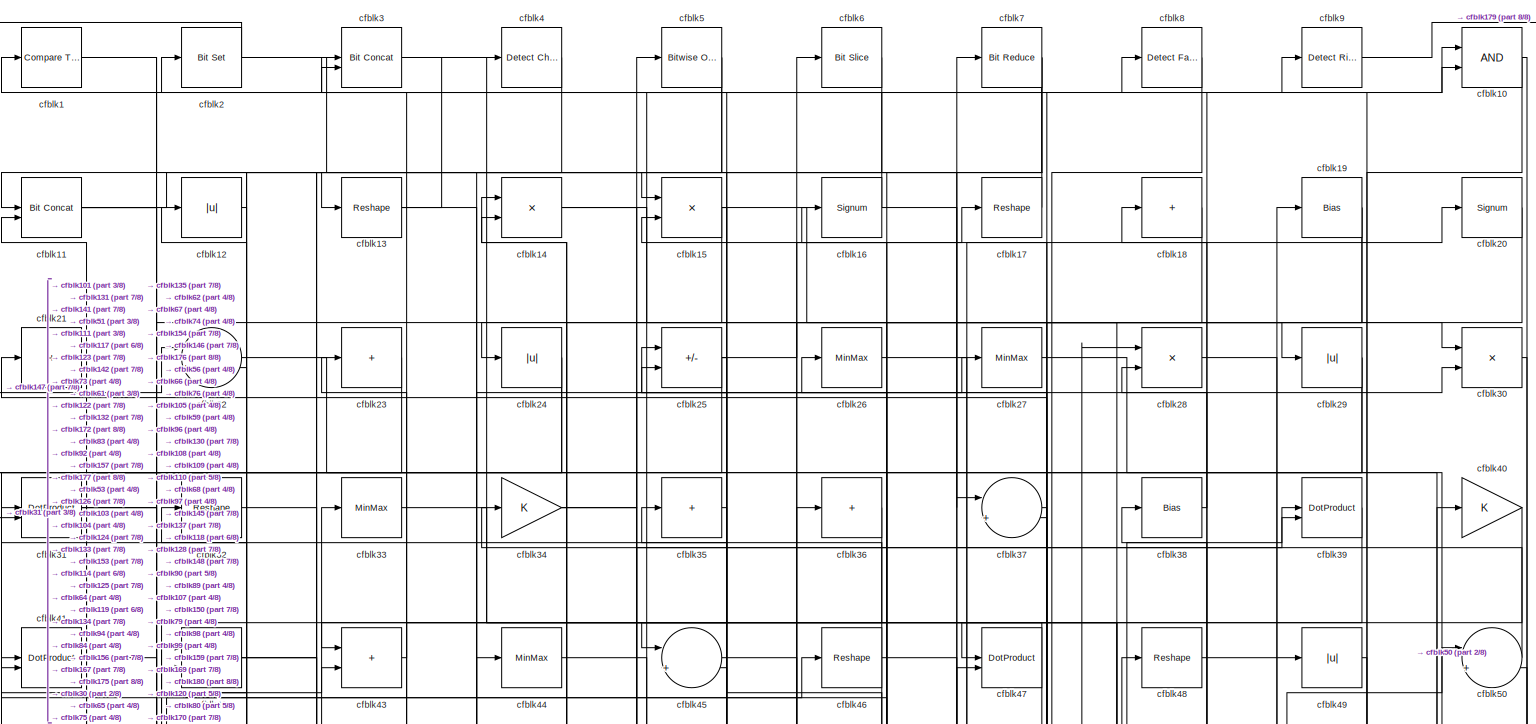
[diagram: root canvas - part 1/8, full width, top band]
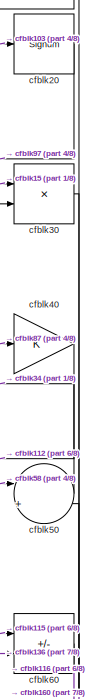
[diagram: root canvas - part 2/8, top right region]
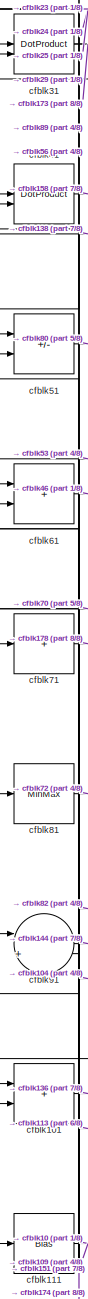
[diagram: root canvas - part 3/8, middle left region]
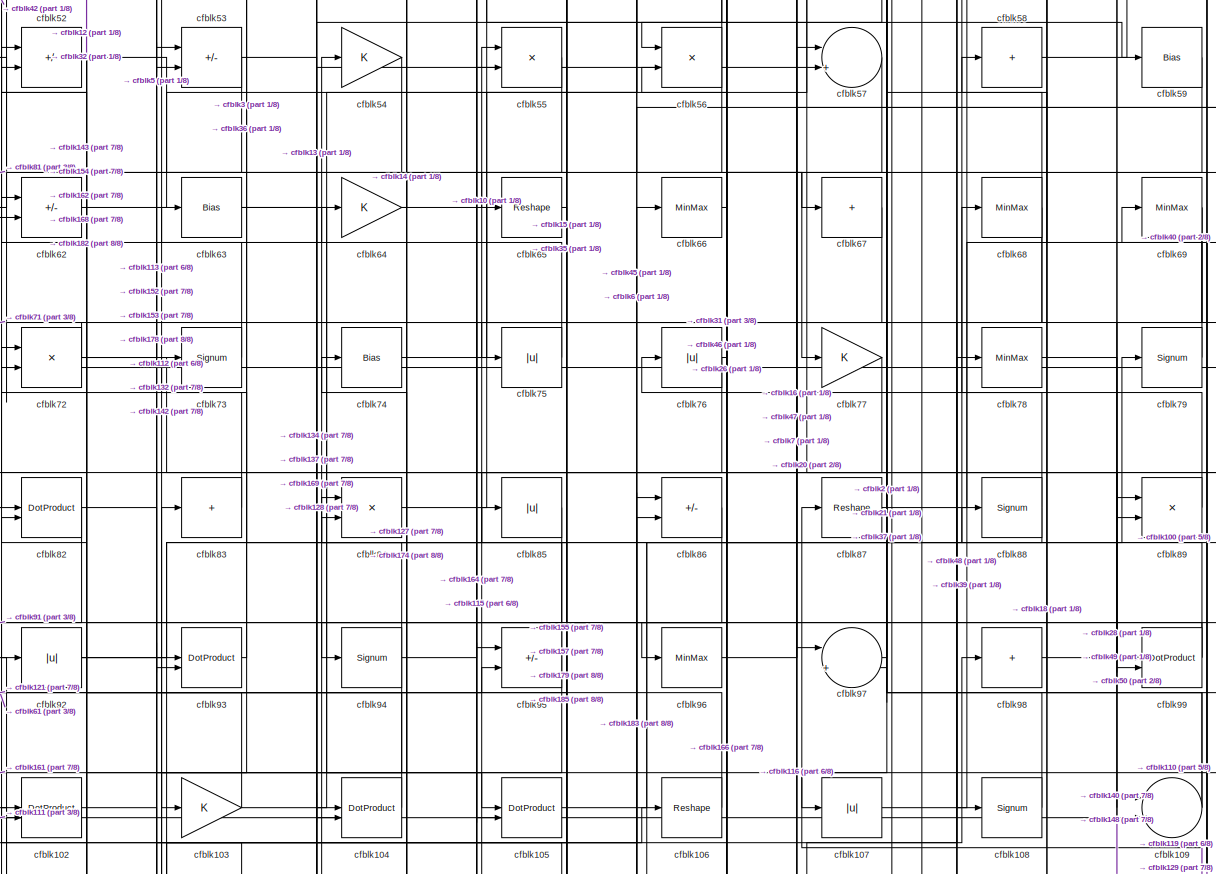
[diagram: root canvas - part 4/8, full width, middle band]
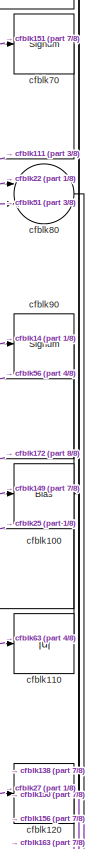
[diagram: root canvas - part 5/8, middle right region]
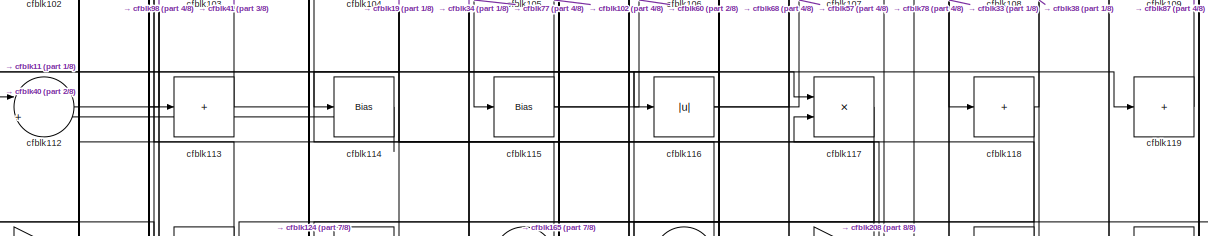
[diagram: root canvas - part 6/8, full width, middle band]
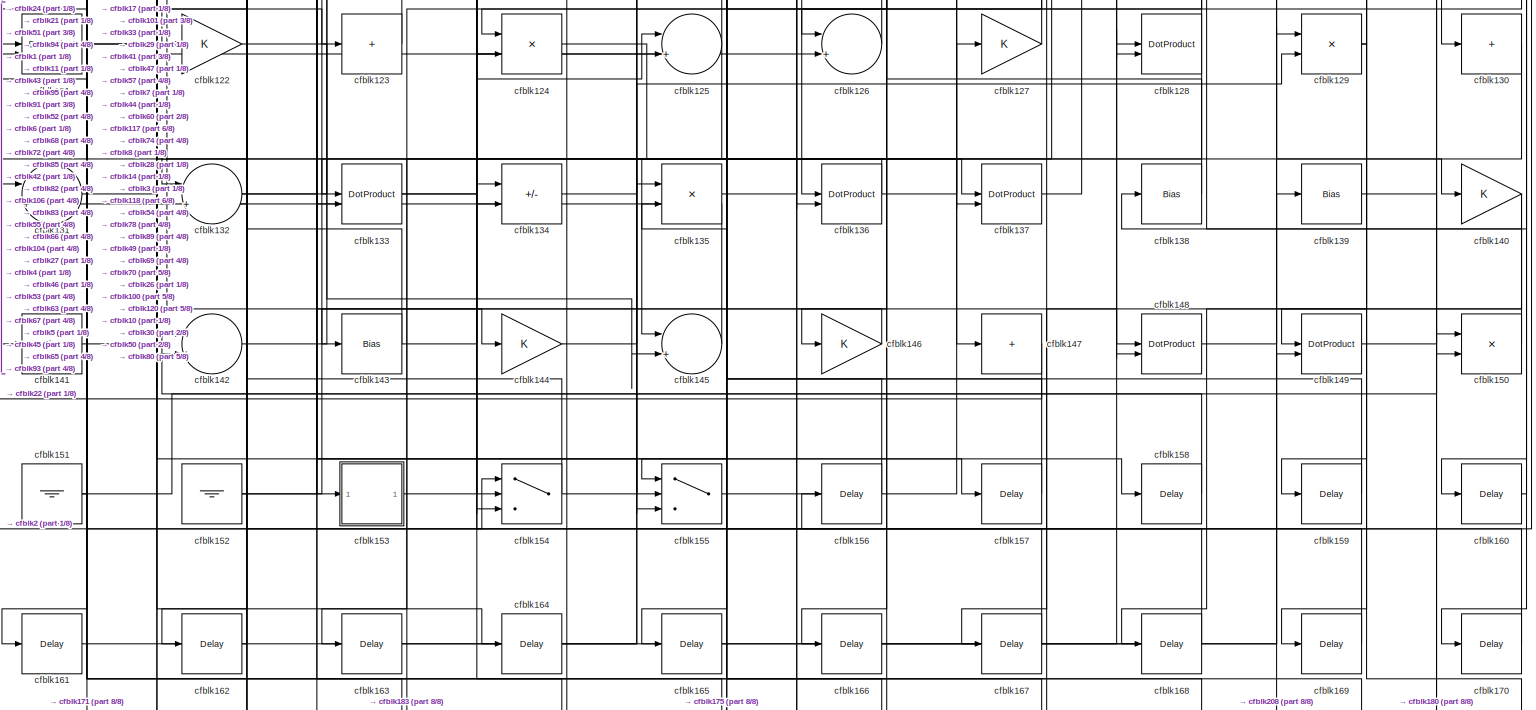
[diagram: root canvas - part 7/8, full width, bottom band]
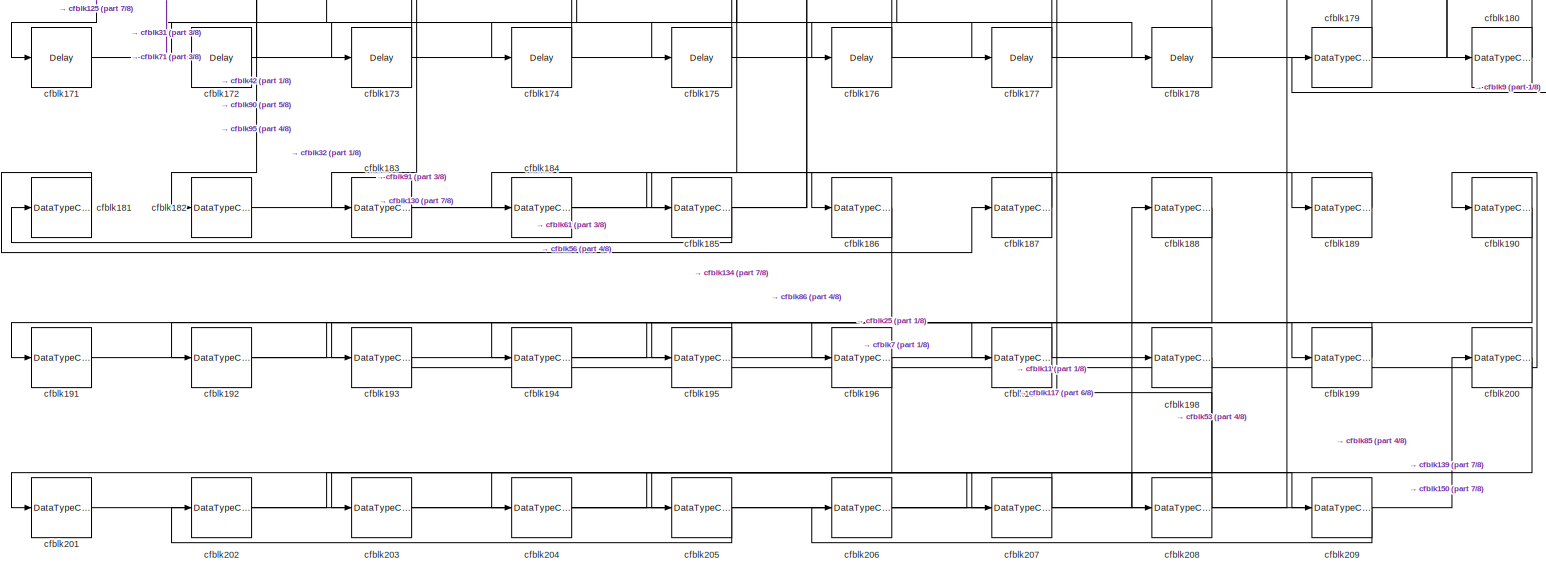
[diagram: root canvas - part 8/8, full width, bottom band]
MODEL slx_411ce4a342ea
KIND model
CONFIG AbsTol = auto
CONFIG EnableMultiTasking = off
CONFIG FixedStep = auto
CONFIG MaxStep = auto
CONFIG MinStep = auto
CONFIG RelTol = 1e-3
CONFIG SampleTimeConstraint = Unconstrained
CONFIG SolverName = VariableStepAuto
CONFIG StartTime = 0.0
CONFIG StopTime = 10.0
BLOCK [Reference] cfblk1  REF=hdlsllib/Logic and Bit
Operations/Compare
To Zero
  SourceBlock = hdlsllib/Logic and Bit\nOperations/Compare\nTo Zero
  SourceType = Compare To Zero
BLOCK [Logic] cfblk10
  AllPortsSameDT = off
  OutDataTypeStr = boolean
BLOCK [Bias] cfblk100
  Bias = 0.0
  SaturateOnIntegerOverflow = off
BLOCK [Sum] cfblk101
  IconShape = rectangular
BLOCK [DotProduct] cfblk102
  OutDataTypeStr = Inherit: Inherit via internal rule
BLOCK [Gain] cfblk103
BLOCK [DotProduct] cfblk104
  OutDataTypeStr = Inherit: Inherit via internal rule
BLOCK [DotProduct] cfblk105
  OutDataTypeStr = Inherit: Inherit via internal rule
BLOCK [Reshape] cfblk106
BLOCK [Abs] cfblk107
  SaturateOnIntegerOverflow = off
BLOCK [Signum] cfblk108
BLOCK [Sum] cfblk109
  Inputs = |++
BLOCK [Reference] cfblk11  REF=hdlsllib/Logic and Bit
Operations/Bit Concat
  SourceBlock = hdlsllib/Logic and Bit\nOperations/Bit Concat
  SourceType = Bit Concat
BLOCK [Abs] cfblk110
  SaturateOnIntegerOverflow = off
BLOCK [Bias] cfblk111
  Bias = 0.0
  SaturateOnIntegerOverflow = off
BLOCK [Sum] cfblk112
  Inputs = |++
BLOCK [Sum] cfblk113
  IconShape = rectangular
  Inputs = +
BLOCK [Bias] cfblk114
  Bias = 0.0
  SaturateOnIntegerOverflow = off
BLOCK [Bias] cfblk115
  Bias = 0.0
  SaturateOnIntegerOverflow = off
BLOCK [Abs] cfblk116
  SaturateOnIntegerOverflow = off
BLOCK [Product] cfblk117
  Inputs = */
  RndMeth = Zero
  SaturateOnIntegerOverflow = on
BLOCK [Sum] cfblk118
  IconShape = rectangular
  Inputs = +
BLOCK [Sum] cfblk119
  IconShape = rectangular
  Inputs = +
BLOCK [Abs] cfblk12
  SaturateOnIntegerOverflow = off
BLOCK [MinMax] cfblk120
BLOCK [DotProduct] cfblk121
  OutDataTypeStr = Inherit: Inherit via internal rule
BLOCK [Gain] cfblk122
BLOCK [Sum] cfblk123
  IconShape = rectangular
  Inputs = +
BLOCK [Product] cfblk124
  Inputs = */
  RndMeth = Zero
  SaturateOnIntegerOverflow = on
BLOCK [Sum] cfblk125
  Inputs = |++
BLOCK [Sum] cfblk126
  Inputs = |++
BLOCK [Gain] cfblk127
BLOCK [DotProduct] cfblk128
  OutDataTypeStr = Inherit: Inherit via internal rule
BLOCK [Product] cfblk129
  Inputs = */
  RndMeth = Zero
  SaturateOnIntegerOverflow = on
BLOCK [Reshape] cfblk13
BLOCK [Sum] cfblk130
  IconShape = rectangular
  Inputs = +
BLOCK [Sum] cfblk131
  Inputs = |++
BLOCK [Sum] cfblk132
  Inputs = |++
BLOCK [DotProduct] cfblk133
  OutDataTypeStr = Inherit: Inherit via internal rule
BLOCK [Sum] cfblk134
  IconShape = rectangular
  Inputs = +-
BLOCK [Product] cfblk135
  Inputs = */
  RndMeth = Zero
  SaturateOnIntegerOverflow = on
BLOCK [DotProduct] cfblk136
  OutDataTypeStr = Inherit: Inherit via internal rule
BLOCK [DotProduct] cfblk137
  OutDataTypeStr = Inherit: Inherit via internal rule
BLOCK [Bias] cfblk138
  Bias = 0.0
  SaturateOnIntegerOverflow = off
BLOCK [Bias] cfblk139
  Bias = 0.0
  SaturateOnIntegerOverflow = off
BLOCK [Product] cfblk14
  Inputs = */
  RndMeth = Zero
  SaturateOnIntegerOverflow = on
BLOCK [Gain] cfblk140
BLOCK [Bias] cfblk141
  Bias = 0.0
  SaturateOnIntegerOverflow = off
BLOCK [Sum] cfblk142
  Inputs = |++
BLOCK [Bias] cfblk143
  Bias = 0.0
  SaturateOnIntegerOverflow = off
BLOCK [Gain] cfblk144
BLOCK [Sum] cfblk145
  Inputs = |++
BLOCK [Gain] cfblk146
BLOCK [Sum] cfblk147
  IconShape = rectangular
  Inputs = +
BLOCK [DotProduct] cfblk148
  OutDataTypeStr = Inherit: Inherit via internal rule
BLOCK [DotProduct] cfblk149
  OutDataTypeStr = Inherit: Inherit via internal rule
BLOCK [Product] cfblk15
  Inputs = */
  RndMeth = Zero
  SaturateOnIntegerOverflow = on
BLOCK [Product] cfblk150
  Inputs = */
  RndMeth = Zero
  SaturateOnIntegerOverflow = on
BLOCK [Ground] cfblk151
BLOCK [Ground] cfblk152
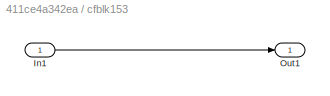
BLOCK [SubSystem] cfblk153
  LibrarySourceBlock = hdlsllib/Ports &\nSubsystems/Subsystem
BLOCK [Inport] cfblk153/In1
BLOCK [Outport] cfblk153/Out1
BLOCK [Switch] cfblk154
  InputSameDT = off
  SaturateOnIntegerOverflow = off
BLOCK [Switch] cfblk155
  InputSameDT = off
  SaturateOnIntegerOverflow = off
BLOCK [Delay] cfblk156
  InputPortMap = u0
  SampleTime = 1
BLOCK [Delay] cfblk157
  InputPortMap = u0
  SampleTime = 1
BLOCK [Delay] cfblk158
  InputPortMap = u0
  SampleTime = 1
BLOCK [Delay] cfblk159
  InputPortMap = u0
  SampleTime = 1
BLOCK [Signum] cfblk16
BLOCK [Delay] cfblk160
  InputPortMap = u0
  SampleTime = 1
BLOCK [Delay] cfblk161
  InputPortMap = u0
  SampleTime = 1
BLOCK [Delay] cfblk162
  InputPortMap = u0
  SampleTime = 1
BLOCK [Delay] cfblk163
  InputPortMap = u0
  SampleTime = 1
BLOCK [Delay] cfblk164
  InputPortMap = u0
  SampleTime = 1
BLOCK [Delay] cfblk165
  InputPortMap = u0
  SampleTime = 1
BLOCK [Delay] cfblk166
  InputPortMap = u0
  SampleTime = 1
BLOCK [Delay] cfblk167
  InputPortMap = u0
  SampleTime = 1
BLOCK [Delay] cfblk168
  InputPortMap = u0
  SampleTime = 1
BLOCK [Delay] cfblk169
  InputPortMap = u0
  SampleTime = 1
BLOCK [Reshape] cfblk17
BLOCK [Delay] cfblk170
  InputPortMap = u0
  SampleTime = 1
BLOCK [Delay] cfblk171
  InputPortMap = u0
  SampleTime = 1
BLOCK [Delay] cfblk172
  InputPortMap = u0
  SampleTime = 1
BLOCK [Delay] cfblk173
  InputPortMap = u0
  SampleTime = 1
BLOCK [Delay] cfblk174
  InputPortMap = u0
  SampleTime = 1
BLOCK [Delay] cfblk175
  InputPortMap = u0
  SampleTime = 1
BLOCK [Delay] cfblk176
  InputPortMap = u0
  SampleTime = 1
BLOCK [Delay] cfblk177
  InputPortMap = u0
  SampleTime = 1
BLOCK [Delay] cfblk178
  InputPortMap = u0
  SampleTime = 1
BLOCK [DataTypeConversion] cfblk179
  OutDataTypeStr = uint8
  RndMeth = Floor
  SaturateOnIntegerOverflow = off
BLOCK [Sum] cfblk18
  IconShape = rectangular
  Inputs = +
BLOCK [DataTypeConversion] cfblk180
  OutDataTypeStr = uint8
  RndMeth = Floor
  SaturateOnIntegerOverflow = off
BLOCK [DataTypeConversion] cfblk181
  RndMeth = Floor
  SaturateOnIntegerOverflow = off
BLOCK [DataTypeConversion] cfblk182
  OutDataTypeStr = uint8
  RndMeth = Floor
  SaturateOnIntegerOverflow = off
BLOCK [DataTypeConversion] cfblk183
  OutDataTypeStr = uint8
  RndMeth = Floor
  SaturateOnIntegerOverflow = off
BLOCK [DataTypeConversion] cfblk184
  RndMeth = Floor
  SaturateOnIntegerOverflow = off
BLOCK [DataTypeConversion] cfblk185
  OutDataTypeStr = uint8
  RndMeth = Floor
  SaturateOnIntegerOverflow = off
BLOCK [DataTypeConversion] cfblk186
  RndMeth = Floor
  SaturateOnIntegerOverflow = off
BLOCK [DataTypeConversion] cfblk187
  OutDataTypeStr = uint8
  RndMeth = Floor
  SaturateOnIntegerOverflow = off
BLOCK [DataTypeConversion] cfblk188
  RndMeth = Floor
  SaturateOnIntegerOverflow = off
BLOCK [DataTypeConversion] cfblk189
  OutDataTypeStr = uint8
  RndMeth = Floor
  SaturateOnIntegerOverflow = off
BLOCK [Bias] cfblk19
  Bias = 0.0
  SaturateOnIntegerOverflow = off
BLOCK [DataTypeConversion] cfblk190
  RndMeth = Floor
  SaturateOnIntegerOverflow = off
BLOCK [DataTypeConversion] cfblk191
  OutDataTypeStr = uint8
  RndMeth = Floor
  SaturateOnIntegerOverflow = off
BLOCK [DataTypeConversion] cfblk192
  RndMeth = Floor
  SaturateOnIntegerOverflow = off
BLOCK [DataTypeConversion] cfblk193
  OutDataTypeStr = uint8
  RndMeth = Floor
  SaturateOnIntegerOverflow = off
BLOCK [DataTypeConversion] cfblk194
  RndMeth = Floor
  SaturateOnIntegerOverflow = off
BLOCK [DataTypeConversion] cfblk195
  OutDataTypeStr = uint8
  RndMeth = Floor
  SaturateOnIntegerOverflow = off
BLOCK [DataTypeConversion] cfblk196
  RndMeth = Floor
  SaturateOnIntegerOverflow = off
BLOCK [DataTypeConversion] cfblk197
  OutDataTypeStr = uint8
  RndMeth = Floor
  SaturateOnIntegerOverflow = off
BLOCK [DataTypeConversion] cfblk198
  RndMeth = Floor
  SaturateOnIntegerOverflow = off
BLOCK [DataTypeConversion] cfblk199
  OutDataTypeStr = uint8
  RndMeth = Floor
  SaturateOnIntegerOverflow = off
BLOCK [Reference] cfblk2  REF=simulink/Logic and Bit
Operations/Bit Set
  LibrarySourceBlock = hdlsllib/Logic and Bit\nOperations/Bit Set
  SourceBlock = simulink/Logic and Bit\nOperations/Bit Set
  SourceType = Bit Set
BLOCK [Signum] cfblk20
BLOCK [DataTypeConversion] cfblk200
  RndMeth = Floor
  SaturateOnIntegerOverflow = off
BLOCK [DataTypeConversion] cfblk201
  OutDataTypeStr = uint8
  RndMeth = Floor
  SaturateOnIntegerOverflow = off
BLOCK [DataTypeConversion] cfblk202
  RndMeth = Floor
  SaturateOnIntegerOverflow = off
BLOCK [DataTypeConversion] cfblk203
  OutDataTypeStr = uint8
  RndMeth = Floor
  SaturateOnIntegerOverflow = off
BLOCK [DataTypeConversion] cfblk204
  RndMeth = Floor
  SaturateOnIntegerOverflow = off
BLOCK [DataTypeConversion] cfblk205
  OutDataTypeStr = uint8
  RndMeth = Floor
  SaturateOnIntegerOverflow = off
BLOCK [DataTypeConversion] cfblk206
  RndMeth = Floor
  SaturateOnIntegerOverflow = off
BLOCK [DataTypeConversion] cfblk207
  OutDataTypeStr = uint8
  RndMeth = Floor
  SaturateOnIntegerOverflow = off
BLOCK [DataTypeConversion] cfblk208
  RndMeth = Floor
  SaturateOnIntegerOverflow = off
BLOCK [DataTypeConversion] cfblk209
  OutDataTypeStr = uint8
  RndMeth = Floor
  SaturateOnIntegerOverflow = off
BLOCK [Sum] cfblk21
  IconShape = rectangular
  Inputs = +
BLOCK [Sum] cfblk22
  Inputs = |++
BLOCK [Sum] cfblk23
  IconShape = rectangular
  Inputs = +
BLOCK [Abs] cfblk24
  SaturateOnIntegerOverflow = off
BLOCK [Sum] cfblk25
  IconShape = rectangular
  Inputs = +-
BLOCK [MinMax] cfblk26
BLOCK [MinMax] cfblk27
BLOCK [Product] cfblk28
  Inputs = */
  RndMeth = Zero
  SaturateOnIntegerOverflow = on
BLOCK [Abs] cfblk29
  SaturateOnIntegerOverflow = off
BLOCK [Reference] cfblk3  REF=hdlsllib/Logic and Bit
Operations/Bit Concat
  SourceBlock = hdlsllib/Logic and Bit\nOperations/Bit Concat
  SourceType = Bit Concat
BLOCK [Product] cfblk30
  Inputs = */
  RndMeth = Zero
  SaturateOnIntegerOverflow = on
BLOCK [DotProduct] cfblk31
  OutDataTypeStr = Inherit: Inherit via internal rule
BLOCK [Reshape] cfblk32
BLOCK [MinMax] cfblk33
BLOCK [Gain] cfblk34
BLOCK [Sum] cfblk35
  IconShape = rectangular
  Inputs = +
BLOCK [Sum] cfblk36
  IconShape = rectangular
  Inputs = +
BLOCK [Sum] cfblk37
  Inputs = |++
BLOCK [Bias] cfblk38
  Bias = 0.0
  SaturateOnIntegerOverflow = off
BLOCK [DotProduct] cfblk39
  OutDataTypeStr = Inherit: Inherit via internal rule
BLOCK [Reference] cfblk4  REF=simulink/Logic and Bit
Operations/Detect
Change
  LibrarySourceBlock = hdlsllib/Logic and Bit\nOperations/Detect\nChange
  SourceBlock = simulink/Logic and Bit\nOperations/Detect\nChange
  SourceType = Detect Change
BLOCK [Gain] cfblk40
BLOCK [DotProduct] cfblk41
  OutDataTypeStr = Inherit: Inherit via internal rule
BLOCK [Product] cfblk42
  Inputs = */
  RndMeth = Zero
  SaturateOnIntegerOverflow = on
BLOCK [Sum] cfblk43
  IconShape = rectangular
BLOCK [MinMax] cfblk44
BLOCK [Sum] cfblk45
  Inputs = |++
BLOCK [Reshape] cfblk46
BLOCK [DotProduct] cfblk47
  OutDataTypeStr = Inherit: Inherit via internal rule
BLOCK [Reshape] cfblk48
BLOCK [Abs] cfblk49
  SaturateOnIntegerOverflow = off
BLOCK [Reference] cfblk5  REF=simulink/Logic and Bit
Operations/Bitwise
Operator
  LibrarySourceBlock = hdlsllib/Logic and Bit\nOperations/Bitwise\nOperator
  SourceBlock = simulink/Logic and Bit\nOperations/Bitwise\nOperator
  SourceType = Bitwise Operator
BLOCK [Sum] cfblk50
  Inputs = |++
BLOCK [Sum] cfblk51
  IconShape = rectangular
  Inputs = +-
BLOCK [Sum] cfblk52
  IconShape = rectangular
  Inputs = +-
BLOCK [Sum] cfblk53
  IconShape = rectangular
  Inputs = +-
BLOCK [Gain] cfblk54
BLOCK [Product] cfblk55
  Inputs = */
  RndMeth = Zero
  SaturateOnIntegerOverflow = on
BLOCK [Product] cfblk56
  Inputs = */
  RndMeth = Zero
  SaturateOnIntegerOverflow = on
BLOCK [Sum] cfblk57
  Inputs = |++
BLOCK [Sum] cfblk58
  IconShape = rectangular
  Inputs = +
BLOCK [Bias] cfblk59
  Bias = 0.0
  SaturateOnIntegerOverflow = off
BLOCK [Reference] cfblk6  REF=hdlsllib/Logic and Bit
Operations/Bit Slice
  SourceBlock = hdlsllib/Logic and Bit\nOperations/Bit Slice
  SourceType = Bit Slice
BLOCK [Sum] cfblk60
  IconShape = rectangular
  Inputs = +-
BLOCK [Sum] cfblk61
  IconShape = rectangular
BLOCK [Sum] cfblk62
  IconShape = rectangular
  Inputs = +-
BLOCK [Bias] cfblk63
  Bias = 0.0
  SaturateOnIntegerOverflow = off
BLOCK [Gain] cfblk64
BLOCK [Reshape] cfblk65
BLOCK [MinMax] cfblk66
BLOCK [Sum] cfblk67
  IconShape = rectangular
  Inputs = +
BLOCK [MinMax] cfblk68
BLOCK [MinMax] cfblk69
BLOCK [Reference] cfblk7  REF=hdlsllib/Logic and Bit
Operations/Bit Reduce
  SourceBlock = hdlsllib/Logic and Bit\nOperations/Bit Reduce
  SourceType = Bit Reduce
BLOCK [Signum] cfblk70
BLOCK [Sum] cfblk71
  IconShape = rectangular
  Inputs = +
BLOCK [Product] cfblk72
  Inputs = */
  RndMeth = Zero
  SaturateOnIntegerOverflow = on
BLOCK [Signum] cfblk73
BLOCK [Bias] cfblk74
  Bias = 0.0
  SaturateOnIntegerOverflow = off
BLOCK [Abs] cfblk75
  SaturateOnIntegerOverflow = off
BLOCK [Abs] cfblk76
  SaturateOnIntegerOverflow = off
BLOCK [Gain] cfblk77
BLOCK [MinMax] cfblk78
BLOCK [Signum] cfblk79
BLOCK [Reference] cfblk8  REF=hdlsllib/Logic and Bit
Operations/Detect Fall
Nonpositive
  SourceBlock = hdlsllib/Logic and Bit\nOperations/Detect Fall\nNonpositive
  SourceType = Detect Fall Nonpositive
BLOCK [Sum] cfblk80
  Inputs = |++
BLOCK [MinMax] cfblk81
BLOCK [DotProduct] cfblk82
  OutDataTypeStr = Inherit: Inherit via internal rule
BLOCK [Sum] cfblk83
  IconShape = rectangular
  Inputs = +
BLOCK [Product] cfblk84
  Inputs = */
  RndMeth = Zero
  SaturateOnIntegerOverflow = on
BLOCK [Abs] cfblk85
  SaturateOnIntegerOverflow = off
BLOCK [Sum] cfblk86
  IconShape = rectangular
  Inputs = +-
BLOCK [Reshape] cfblk87
BLOCK [Signum] cfblk88
BLOCK [Product] cfblk89
  Inputs = */
  RndMeth = Zero
  SaturateOnIntegerOverflow = on
BLOCK [Reference] cfblk9  REF=hdlsllib/Logic and Bit
Operations/Detect Rise
Positive
  SourceBlock = hdlsllib/Logic and Bit\nOperations/Detect Rise\nPositive
  SourceType = Detect Rise Positive
BLOCK [Signum] cfblk90
BLOCK [Sum] cfblk91
  Inputs = |++
BLOCK [Abs] cfblk92
  SaturateOnIntegerOverflow = off
BLOCK [DotProduct] cfblk93
  OutDataTypeStr = Inherit: Inherit via internal rule
BLOCK [Signum] cfblk94
BLOCK [Sum] cfblk95
  IconShape = rectangular
  Inputs = +-
BLOCK [MinMax] cfblk96
BLOCK [Sum] cfblk97
  Inputs = |++
BLOCK [Sum] cfblk98
  IconShape = rectangular
  Inputs = +
BLOCK [DotProduct] cfblk99
  OutDataTypeStr = Inherit: Inherit via internal rule
NET cfblk100:1 -> cfblk138:1, cfblk150:2, cfblk56:2
LINE cfblk101:1 -> cfblk136:1
LINE cfblk102:1 -> cfblk113:1
NET cfblk103:1 -> cfblk20:1, cfblk32:1
LINE cfblk104:1 -> cfblk61:1
LINE cfblk105:1 -> cfblk7:1
LINE cfblk106:1 -> cfblk62:1
LINE cfblk107:1 -> cfblk39:1
LINE cfblk108:1 -> cfblk21:1
NET cfblk109:1 -> cfblk15:2, cfblk88:1
NET cfblk10:1 -> cfblk169:1, cfblk170:1
LINE cfblk110:1 -> cfblk25:1
NET cfblk111:1 -> cfblk109:2, cfblk10:2
LINE cfblk112:1 -> cfblk98:1
NET cfblk113:1 -> cfblk41:2, cfblk57:2
LINE cfblk114:1 -> cfblk112:2
NET cfblk115:1 -> cfblk102:1, cfblk60:1, cfblk68:1
NET cfblk116:1 -> cfblk57:1, cfblk78:1
LINE cfblk117:1 -> cfblk124:1
NET cfblk118:1 -> cfblk165:1, cfblk38:1
LINE cfblk119:1 -> cfblk87:1
NET cfblk11:1 -> cfblk117:1, cfblk123:1, cfblk137:1, cfblk13:1
LINE cfblk120:1 -> cfblk163:1
NET cfblk121:1 -> cfblk125:2, cfblk95:2
LINE cfblk122:1 -> cfblk145:2
LINE cfblk123:1 -> cfblk22:2
LINE cfblk124:1 -> cfblk136:2
NET cfblk125:1 -> cfblk14:1, cfblk171:1
LINE cfblk126:1 -> cfblk33:1
LINE cfblk127:1 -> cfblk74:1
NET cfblk128:1 -> cfblk155:2, cfblk54:1
NET cfblk129:1 -> cfblk149:1, cfblk69:1
LINE cfblk12:1 -> cfblk92:1
LINE cfblk130:1 -> cfblk183:1
LINE cfblk131:1 -> cfblk164:1
NET cfblk132:1 -> cfblk148:2, cfblk66:1
NET cfblk133:1 -> cfblk126:2, cfblk27:1
LINE cfblk134:1 -> cfblk5:1
LINE cfblk135:1 -> cfblk17:1
NET cfblk136:1 -> cfblk133:1, cfblk60:2
LINE cfblk137:1 -> cfblk28:1
LINE cfblk138:1 -> cfblk41:1
LINE cfblk139:1 -> cfblk180:1
NET cfblk13:1 -> cfblk104:2, cfblk4:1
NET cfblk140:1 -> cfblk167:1, cfblk168:1
LINE cfblk141:1 -> cfblk43:2
LINE cfblk142:1 -> cfblk55:1
NET cfblk143:1 -> cfblk125:1, cfblk52:1
LINE cfblk144:1 -> cfblk135:1
LINE cfblk145:1 -> cfblk131:2
LINE cfblk146:1 -> cfblk143:1
LINE cfblk147:1 -> cfblk22:1
LINE cfblk148:1 -> cfblk89:1
LINE cfblk149:1 -> cfblk100:1
NET cfblk14:1 -> cfblk148:1, cfblk90:1
LINE cfblk150:1 -> cfblk28:2
NET cfblk151:1 -> cfblk51:2, cfblk70:1
NET cfblk152:1 -> cfblk106:1, cfblk83:1
LINE cfblk153/In1:1 -> cfblk153/Out1:1
LINE cfblk153:1 -> cfblk44:1
NET cfblk154:1 -> cfblk129:2, cfblk52:2
LINE cfblk155:1 -> cfblk127:1
LINE cfblk156:1 -> cfblk1:1
LINE cfblk157:1 -> cfblk93:1
LINE cfblk158:1 -> cfblk142:1
LINE cfblk159:1 -> cfblk135:2
NET cfblk15:1 -> cfblk30:1, cfblk62:2, cfblk65:1
LINE cfblk160:1 -> cfblk50:2
LINE cfblk161:1 -> cfblk55:2
LINE cfblk162:1 -> cfblk82:2
LINE cfblk163:1 -> cfblk129:1
LINE cfblk164:1 -> cfblk95:1
LINE cfblk165:1 -> cfblk149:2
LINE cfblk166:1 -> cfblk128:1
LINE cfblk167:1 -> cfblk45:2
LINE cfblk168:1 -> cfblk72:2
LINE cfblk169:1 -> cfblk104:1
NET cfblk16:1 -> cfblk3:2, cfblk97:1
LINE cfblk170:1 -> cfblk121:2
LINE cfblk171:1 -> cfblk150:1
LINE cfblk172:1 -> cfblk42:2
LINE cfblk173:1 -> cfblk91:1
LINE cfblk174:1 -> cfblk61:2
LINE cfblk175:1 -> cfblk134:1
LINE cfblk176:1 -> cfblk25:2
LINE cfblk177:1 -> cfblk11:2
LINE cfblk178:1 -> cfblk53:1
LINE cfblk179:1 -> cfblk85:1
LINE cfblk17:1 -> cfblk11:1
LINE cfblk180:1 -> cfblk9:1
LINE cfblk181:1 -> cfblk187:1
LINE cfblk182:1 -> cfblk86:1
LINE cfblk183:1 -> cfblk86:2
LINE cfblk184:1 -> cfblk189:1
LINE cfblk185:1 -> cfblk181:1
LINE cfblk186:1 -> cfblk191:1
LINE cfblk187:1 -> cfblk184:1
LINE cfblk188:1 -> cfblk193:1
LINE cfblk189:1 -> cfblk186:1
LINE cfblk18:1 -> cfblk56:1
LINE cfblk190:1 -> cfblk195:1
LINE cfblk191:1 -> cfblk188:1
LINE cfblk192:1 -> cfblk197:1
LINE cfblk193:1 -> cfblk190:1
LINE cfblk194:1 -> cfblk199:1
LINE cfblk195:1 -> cfblk192:1
LINE cfblk196:1 -> cfblk201:1
LINE cfblk197:1 -> cfblk194:1
LINE cfblk198:1 -> cfblk203:1
LINE cfblk199:1 -> cfblk196:1
NET cfblk19:1 -> cfblk114:1, cfblk24:1
NET cfblk1:1 -> cfblk142:2, cfblk15:1
LINE cfblk200:1 -> cfblk205:1
LINE cfblk201:1 -> cfblk198:1
LINE cfblk202:1 -> cfblk207:1
LINE cfblk203:1 -> cfblk200:1
LINE cfblk204:1 -> cfblk209:1
LINE cfblk205:1 -> cfblk202:1
LINE cfblk206:1 -> cfblk208:1
LINE cfblk207:1 -> cfblk204:1
NET cfblk208:1 -> cfblk117:2, cfblk139:1
LINE cfblk209:1 -> cfblk206:1
LINE cfblk20:1 -> cfblk97:2
LINE cfblk21:1 -> cfblk131:1
LINE cfblk22:1 -> cfblk80:1
LINE cfblk23:1 -> cfblk51:1
NET cfblk24:1 -> cfblk101:1, cfblk141:1
NET cfblk25:1 -> cfblk29:1, cfblk31:2, cfblk45:1
LINE cfblk26:1 -> cfblk130:1
LINE cfblk27:1 -> cfblk120:1
LINE cfblk28:1 -> cfblk99:1
NET cfblk29:1 -> cfblk101:2, cfblk146:1
NET cfblk2:1 -> cfblk154:1, cfblk37:1
LINE cfblk30:1 -> cfblk160:1
NET cfblk31:1 -> cfblk173:1, cfblk89:2
LINE cfblk32:1 -> cfblk177:1
LINE cfblk33:1 -> cfblk118:1
NET cfblk34:1 -> cfblk119:1, cfblk30:2
LINE cfblk35:1 -> cfblk75:1
LINE cfblk36:1 -> cfblk103:1
LINE cfblk37:1 -> cfblk107:1
LINE cfblk38:1 -> cfblk8:1
LINE cfblk39:1 -> cfblk47:1
LINE cfblk3:1 -> cfblk128:2
LINE cfblk40:1 -> cfblk112:1
LINE cfblk41:1 -> cfblk158:1
NET cfblk42:1 -> cfblk154:3, cfblk157:1
LINE cfblk43:1 -> cfblk23:1
LINE cfblk44:1 -> cfblk147:1
LINE cfblk45:1 -> cfblk67:1
NET cfblk46:1 -> cfblk154:2, cfblk35:1, cfblk59:1
NET cfblk47:1 -> cfblk126:1, cfblk43:1
LINE cfblk48:1 -> cfblk19:1
LINE cfblk49:1 -> cfblk159:1
LINE cfblk4:1 -> cfblk124:2
LINE cfblk50:1 -> cfblk34:1
LINE cfblk51:1 -> cfblk80:2
LINE cfblk52:1 -> cfblk77:1
NET cfblk53:1 -> cfblk137:2, cfblk81:1
LINE cfblk54:1 -> cfblk121:1
LINE cfblk55:1 -> cfblk82:1
NET cfblk56:1 -> cfblk174:1, cfblk31:1
LINE cfblk57:1 -> cfblk166:1
LINE cfblk58:1 -> cfblk50:1
LINE cfblk59:1 -> cfblk96:1
NET cfblk5:1 -> cfblk133:2, cfblk53:2
LINE cfblk60:1 -> cfblk116:1
LINE cfblk61:1 -> cfblk46:1
LINE cfblk62:1 -> cfblk36:1
NET cfblk63:1 -> cfblk110:1, cfblk155:3
NET cfblk64:1 -> cfblk108:1, cfblk14:2
LINE cfblk65:1 -> cfblk155:1
LINE cfblk66:1 -> cfblk26:1
LINE cfblk67:1 -> cfblk134:2
NET cfblk68:1 -> cfblk102:2, cfblk132:1, cfblk37:2
NET cfblk69:1 -> cfblk105:2, cfblk99:2
LINE cfblk6:1 -> cfblk122:1
LINE cfblk70:1 -> cfblk111:1
LINE cfblk71:1 -> cfblk178:1
NET cfblk72:1 -> cfblk109:1, cfblk64:1, cfblk71:1
LINE cfblk73:1 -> cfblk42:1
LINE cfblk74:1 -> cfblk6:1
LINE cfblk75:1 -> cfblk63:1
NET cfblk76:1 -> cfblk16:1, cfblk93:2
LINE cfblk77:1 -> cfblk115:1
LINE cfblk78:1 -> cfblk140:1
LINE cfblk79:1 -> cfblk18:1
NET cfblk7:1 -> cfblk132:2, cfblk175:1, cfblk176:1
LINE cfblk80:1 -> cfblk156:1
LINE cfblk81:1 -> cfblk72:1
NET cfblk82:1 -> cfblk153:1, cfblk91:2
LINE cfblk83:1 -> cfblk12:1
LINE cfblk84:1 -> cfblk10:1
LINE cfblk85:1 -> cfblk162:1
LINE cfblk86:1 -> cfblk185:1
LINE cfblk87:1 -> cfblk40:1
NET cfblk88:1 -> cfblk76:1, cfblk84:2
LINE cfblk89:1 -> cfblk48:1
LINE cfblk8:1 -> cfblk145:1
LINE cfblk90:1 -> cfblk172:1
LINE cfblk91:1 -> cfblk144:1
NET cfblk92:1 -> cfblk105:1, cfblk79:1
LINE cfblk93:1 -> cfblk73:1
NET cfblk94:1 -> cfblk161:1, cfblk39:2, cfblk3:1
NET cfblk95:1 -> cfblk182:1, cfblk84:1
LINE cfblk96:1 -> cfblk47:2
LINE cfblk97:1 -> cfblk2:1
LINE cfblk98:1 -> cfblk49:1
NET cfblk99:1 -> cfblk58:1, cfblk94:1
LINE cfblk9:1 -> cfblk179:1
note: NET lines group one-source signal fan-out (src -> all destinations, sorted); 1:1 wires keep LINE
